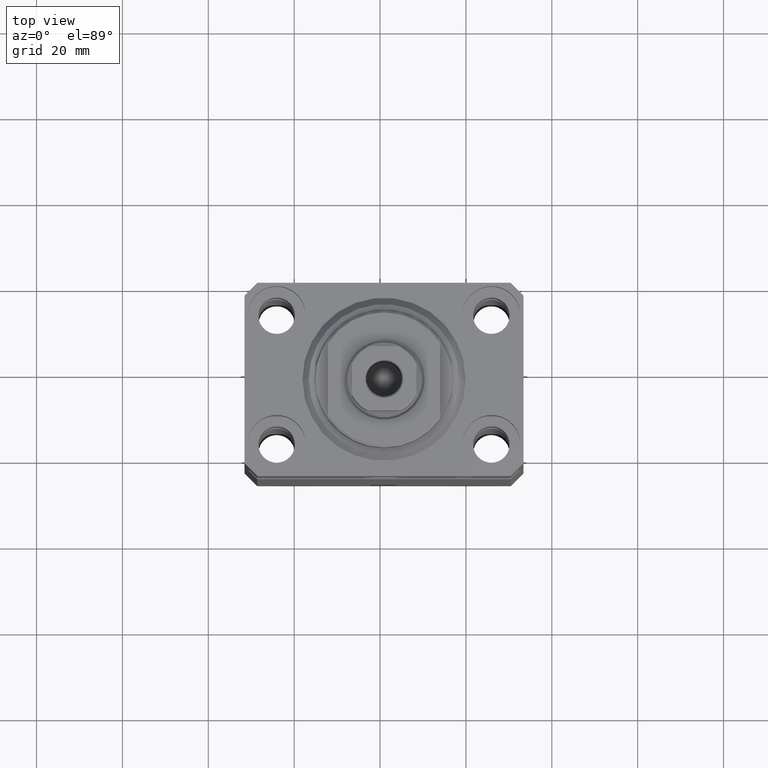
[diagram: clean part render]
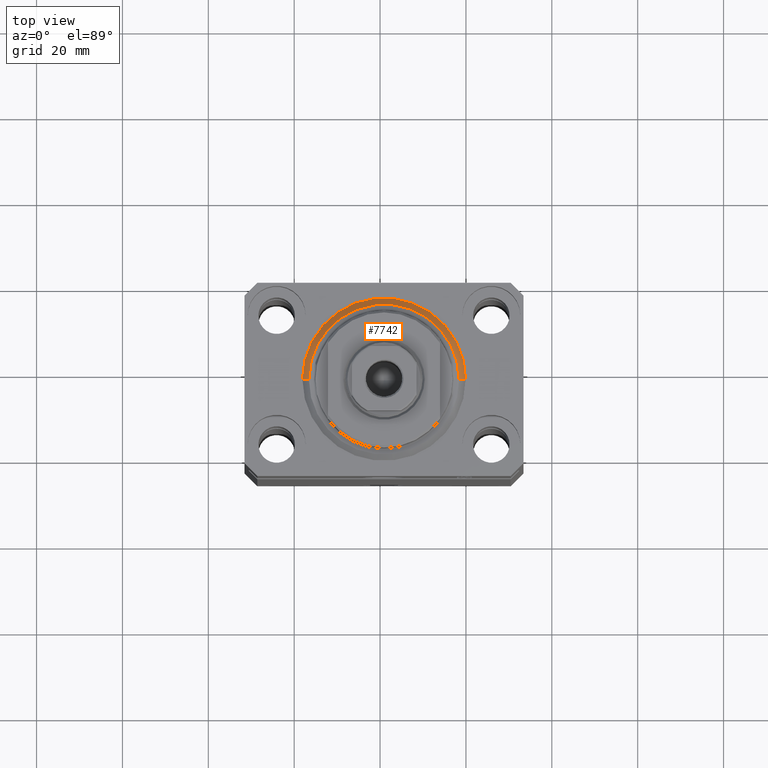
[diagram: same view with one face highlighted and labeled with its STEP entity id]
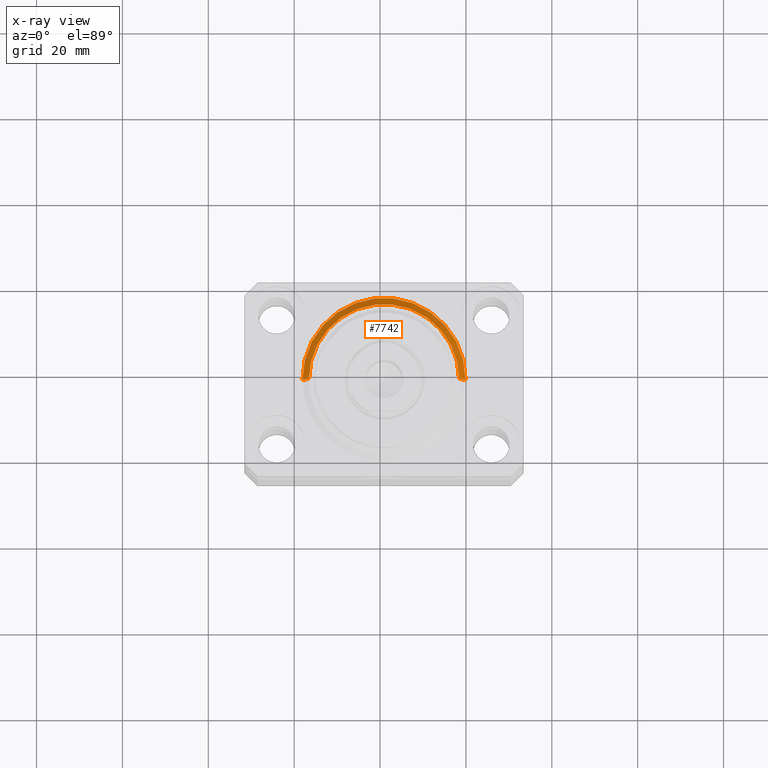
[diagram: x-ray of the same camera — body ghosted, the highlighted face saturated]
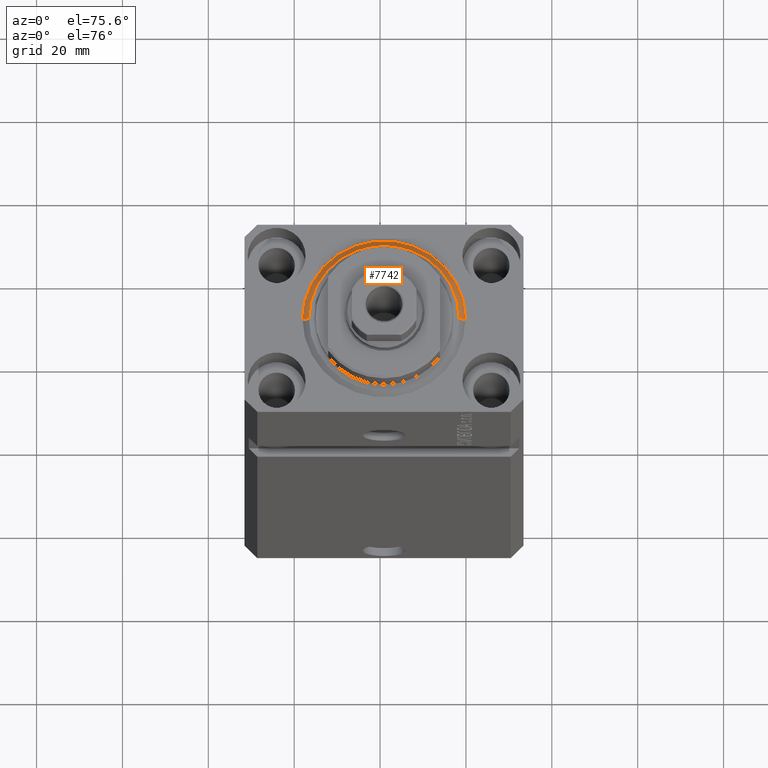
[diagram: same view with one face highlighted and labeled with its STEP entity id]
A machine part, top view. The second image highlights one B-rep face of the part: STEP entity #7742.
The next image is the same camera in x-ray: the body ghosted, the highlighted face saturated — about 0% of this face is hidden behind the body in this view.
A second angle (auxiliary view) of the same face is appended — the face is thin or edge-on in the first view.
In plain terms, the highlighted conical surface has half-angle 45 deg.
Its self-contained STEP definition (entity closure, byte-faithful):
#347 = CARTESIAN_POINT ( 'NONE',  ( -17.49999999999999645, 2.234980408443919215E-15, 0.000000000000000000 ) ) ;
#540 = DIRECTION ( 'NONE',  ( -0.7071067811865483499, 8.659560562354942719E-17, 0.7071067811865467956 ) ) ;
#841 = ORIENTED_EDGE ( 'NONE', *, *, #24088, .F. ) ;
#849 = ORIENTED_EDGE ( 'NONE', *, *, #32915, .T. ) ;
#2074 = DIRECTION ( 'NONE',  ( 1.000000000000000000, 0.000000000000000000, 0.000000000000000000 ) ) ;
#2953 = ORIENTED_EDGE ( 'NONE', *, *, #13152, .F. ) ;
#3321 = CARTESIAN_POINT ( 'NONE',  ( 19.00000000000000000, 0.000000000000000000, 1.500000000000001332 ) ) ;
#4101 = CARTESIAN_POINT ( 'NONE',  ( 19.00000000000000000, 2.326828918379970970E-15, 1.500000000000001332 ) ) ;
#7742 = ADVANCED_FACE ( 'NONE', ( #32884 ), #37111, .T. ) ;
#13152 = EDGE_CURVE ( 'NONE', #14322, #28245, #17209, .T. ) ;
#13257 = EDGE_CURVE ( 'NONE', #40421, #22270, #24365, .T. ) ;
#14322 = VERTEX_POINT ( 'NONE', #347 ) ;
#16465 = AXIS2_PLACEMENT_3D ( 'NONE', #17139, #20523, #38222 ) ;
#16959 = CARTESIAN_POINT ( 'NONE',  ( -19.00000000000000000, 2.326828918379970970E-15, 1.500000000000001332 ) ) ;
#17139 = CARTESIAN_POINT ( 'NONE',  ( 0.000000000000000000, 0.000000000000000000, 0.000000000000000000 ) ) ;
#17209 = CIRCLE ( 'NONE', #16465, 17.49999999999999645 ) ;
#17273 = LINE ( 'NONE', #3321, #20583 ) ;
#19058 = CARTESIAN_POINT ( 'NONE',  ( -19.00000000000000000, 0.000000000000000000, 1.500000000000001332 ) ) ;
#20523 = DIRECTION ( 'NONE',  ( -0.000000000000000000, -0.000000000000000000, -1.000000000000000000 ) ) ;
#20583 = VECTOR ( 'NONE', #33698, 1000.000000000000000 ) ;
#20750 = DIRECTION ( 'NONE',  ( -0.000000000000000000, -0.000000000000000000, 1.000000000000000000 ) ) ;
#21230 = LINE ( 'NONE', #16959, #38603 ) ;
#22270 = VERTEX_POINT ( 'NONE', #19058 ) ;
#22551 = CARTESIAN_POINT ( 'NONE',  ( 0.000000000000000000, 0.000000000000000000, 1.500000000000001332 ) ) ;
#24088 = EDGE_CURVE ( 'NONE', #28245, #40421, #17273, .T. ) ;
#24210 = AXIS2_PLACEMENT_3D ( 'NONE', #22551, #36013, #2074 ) ;
#24365 = CIRCLE ( 'NONE', #40150, 19.00000000000000000 ) ;
#28245 = VERTEX_POINT ( 'NONE', #37784 ) ;
#30559 = ORIENTED_EDGE ( 'NONE', *, *, #13257, .F. ) ;
#32884 = FACE_OUTER_BOUND ( 'NONE', #42397, .T. ) ;
#32915 = EDGE_CURVE ( 'NONE', #14322, #22270, #21230, .T. ) ;
#33698 = DIRECTION ( 'NONE',  ( 0.7071067811865483499, 0.000000000000000000, 0.7071067811865467956 ) ) ;
#34220 = DIRECTION ( 'NONE',  ( 1.000000000000000000, 0.000000000000000000, 0.000000000000000000 ) ) ;
#36013 = DIRECTION ( 'NONE',  ( -0.000000000000000000, -0.000000000000000000, 1.000000000000000000 ) ) ;
#37111 = CONICAL_SURFACE ( 'NONE', #24210, 19.00000000000000000, 0.7853981633974492782 ) ;
#37784 = CARTESIAN_POINT ( 'NONE',  ( 17.49999999999999645, 0.000000000000000000, 0.000000000000000000 ) ) ;
#38222 = DIRECTION ( 'NONE',  ( 1.000000000000000000, 0.000000000000000000, 0.000000000000000000 ) ) ;
#38603 = VECTOR ( 'NONE', #540, 1000.000000000000000 ) ;
#40150 = AXIS2_PLACEMENT_3D ( 'NONE', #44298, #20750, #34220 ) ;
#40421 = VERTEX_POINT ( 'NONE', #4101 ) ;
#42397 = EDGE_LOOP ( 'NONE', ( #2953, #849, #30559, #841 ) ) ;
#44298 = CARTESIAN_POINT ( 'NONE',  ( 0.000000000000000000, 0.000000000000000000, 1.500000000000001332 ) ) ;